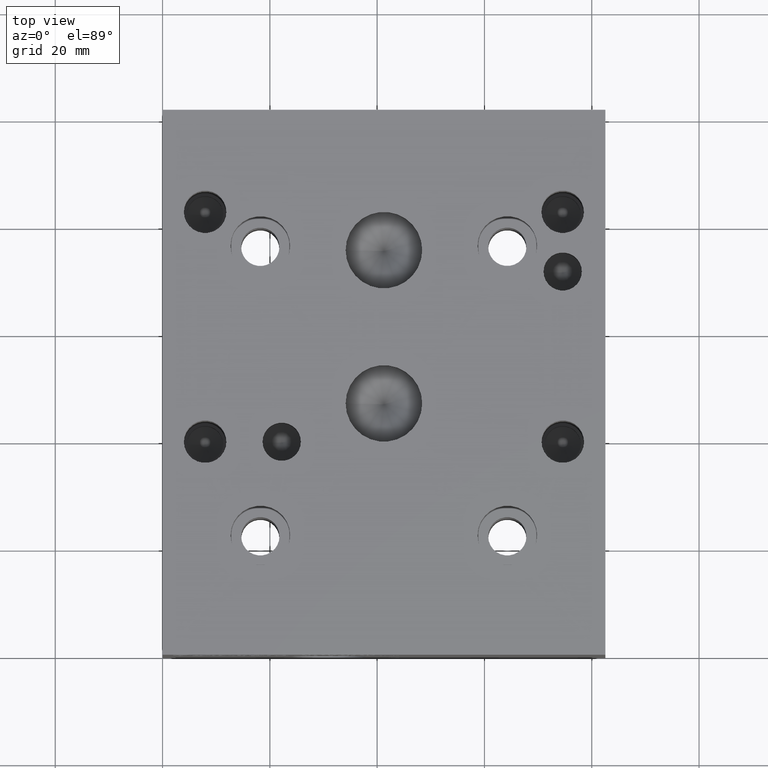
[diagram: clean part render]
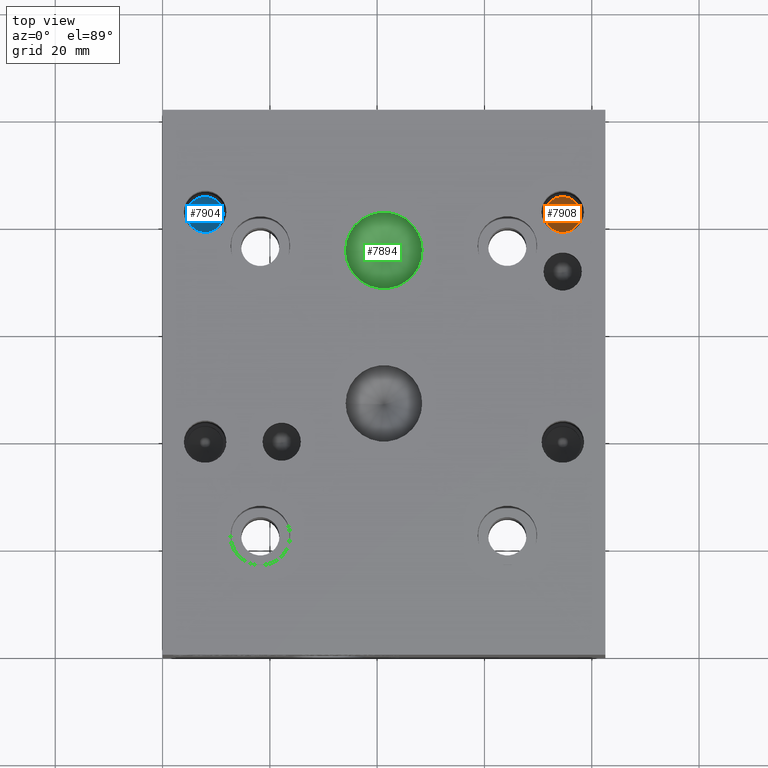
[diagram: same view with three faces highlighted in distinct colors, each labeled with its STEP entity id]
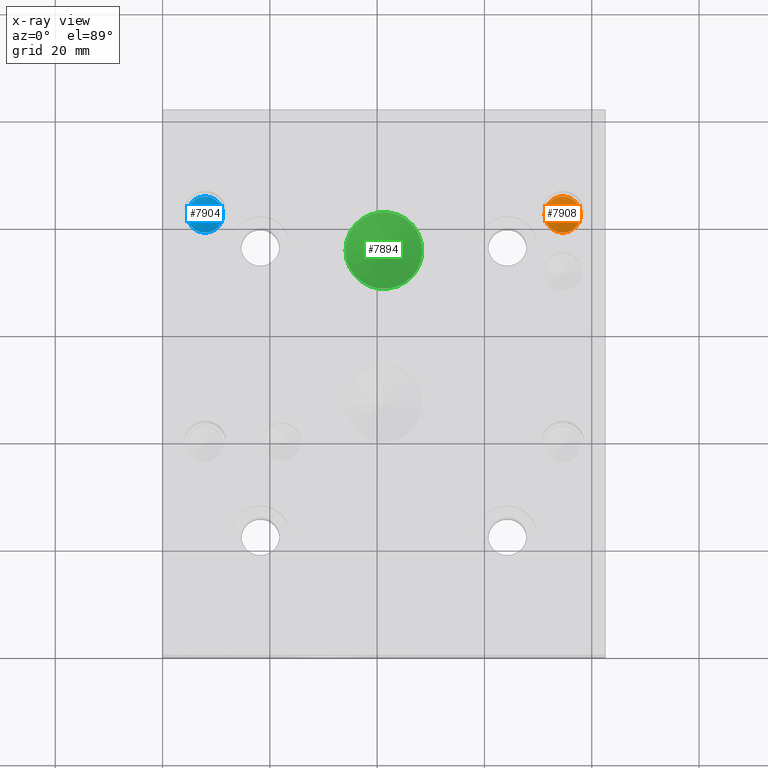
[diagram: x-ray of the same camera — body ghosted, the three highlighted faces saturated]
A machine part, top view with three faces highlighted in distinct colors.
The next image is the same camera in x-ray (body ghosted, the three faces saturated) — at least one of them is partly hidden behind the body in this view.
Their STEP definitions:

[orange] entity #7908 — the highlighted conical surface has half-angle 60 deg.
#23=CONICAL_SURFACE('',#8336,1.68275,1.0471975511966);
#776=CIRCLE('',#8337,3.3655);
#777=CIRCLE('',#8338,3.3655);
#1211=FACE_OUTER_BOUND('',#1665,.T.);
#1665=EDGE_LOOP('',(#7171,#7172,#7173,#7174));
#2472=LINE('',#13312,#3263);
#3263=VECTOR('',#9951,1.68275);
#3995=VERTEX_POINT('',#13308);
#3996=VERTEX_POINT('',#13309);
#3997=VERTEX_POINT('',#13311);
#5067=EDGE_CURVE('',#3995,#3996,#776,.T.);
#5068=EDGE_CURVE('',#3996,#3997,#2472,.T.);
#5069=EDGE_CURVE('',#3996,#3995,#777,.T.);
#7171=ORIENTED_EDGE('',*,*,#5067,.T.);
#7172=ORIENTED_EDGE('',*,*,#5068,.T.);
#7173=ORIENTED_EDGE('',*,*,#5068,.F.);
#7174=ORIENTED_EDGE('',*,*,#5069,.T.);
#7908=ADVANCED_FACE('',(#1211),#23,.F.);
#8336=AXIS2_PLACEMENT_3D('',#13307,#9947,#9948);
#8337=AXIS2_PLACEMENT_3D('',#13310,#9949,#9950);
#8338=AXIS2_PLACEMENT_3D('',#13313,#9952,#9953);
#9947=DIRECTION('center_axis',(0.,0.,1.));
#9948=DIRECTION('ref_axis',(1.,0.,0.));
#9949=DIRECTION('center_axis',(0.,0.,1.));
#9950=DIRECTION('ref_axis',(1.,0.,0.));
#9951=DIRECTION('',(0.866025403784438,1.06057523872491E-16,-0.5));
#9952=DIRECTION('center_axis',(0.,0.,1.));
#9953=DIRECTION('ref_axis',(1.,0.,0.));
#13307=CARTESIAN_POINT('Origin',(74.5744,82.55,7.76606383452116));
#13308=CARTESIAN_POINT('',(77.9399,82.55,8.7376));
#13309=CARTESIAN_POINT('',(71.2089,82.55,8.73760000000001));
#13310=CARTESIAN_POINT('Origin',(74.5744,82.55,8.7376));
#13311=CARTESIAN_POINT('',(74.5744,82.55,6.79452766904232));
#13312=CARTESIAN_POINT('',(72.89165,82.55,7.76606383452116));
#13313=CARTESIAN_POINT('Origin',(74.5744,82.55,8.7376));

[blue] entity #7904 — the highlighted conical surface has half-angle 60 deg.
#22=CONICAL_SURFACE('',#8325,1.68275,1.0471975511966);
#769=CIRCLE('',#8326,3.3655);
#770=CIRCLE('',#8327,3.3655);
#1207=FACE_OUTER_BOUND('',#1660,.T.);
#1660=EDGE_LOOP('',(#7153,#7154,#7155,#7156));
#2469=LINE('',#13290,#3260);
#3260=VECTOR('',#9926,1.68275);
#3987=VERTEX_POINT('',#13286);
#3988=VERTEX_POINT('',#13287);
#3989=VERTEX_POINT('',#13289);
#5057=EDGE_CURVE('',#3987,#3988,#769,.T.);
#5058=EDGE_CURVE('',#3988,#3989,#2469,.T.);
#5059=EDGE_CURVE('',#3988,#3987,#770,.T.);
#7153=ORIENTED_EDGE('',*,*,#5057,.T.);
#7154=ORIENTED_EDGE('',*,*,#5058,.T.);
#7155=ORIENTED_EDGE('',*,*,#5058,.F.);
#7156=ORIENTED_EDGE('',*,*,#5059,.T.);
#7904=ADVANCED_FACE('',(#1207),#22,.F.);
#8325=AXIS2_PLACEMENT_3D('',#13285,#9922,#9923);
#8326=AXIS2_PLACEMENT_3D('',#13288,#9924,#9925);
#8327=AXIS2_PLACEMENT_3D('',#13291,#9927,#9928);
#9922=DIRECTION('center_axis',(0.,0.,1.));
#9923=DIRECTION('ref_axis',(1.,0.,0.));
#9924=DIRECTION('center_axis',(0.,0.,1.));
#9925=DIRECTION('ref_axis',(1.,0.,0.));
#9926=DIRECTION('',(0.866025403784438,1.06057523872491E-16,-0.5));
#9927=DIRECTION('center_axis',(0.,0.,1.));
#9928=DIRECTION('ref_axis',(1.,0.,0.));
#13285=CARTESIAN_POINT('Origin',(7.9248,82.55,7.76606383452116));
#13286=CARTESIAN_POINT('',(11.2903,82.55,8.7376));
#13287=CARTESIAN_POINT('',(4.55929999999999,82.55,8.73760000000001));
#13288=CARTESIAN_POINT('Origin',(7.9248,82.55,8.7376));
#13289=CARTESIAN_POINT('',(7.9248,82.55,6.79452766904232));
#13290=CARTESIAN_POINT('',(6.24205,82.55,7.76606383452116));
#13291=CARTESIAN_POINT('Origin',(7.9248,82.55,8.7376));

[green] entity #7894 — the highlighted conical surface has half-angle 60 deg.
#18=CONICAL_SURFACE('',#8296,3.5687,1.0471975511966);
#750=CIRCLE('',#8297,7.1374);
#751=CIRCLE('',#8298,7.1374);
#1197=FACE_OUTER_BOUND('',#1649,.T.);
#1649=EDGE_LOOP('',(#7105,#7106,#7107,#7108));
#2460=LINE('',#13229,#3251);
#3251=VECTOR('',#9859,3.5687);
#3964=VERTEX_POINT('',#13225);
#3965=VERTEX_POINT('',#13226);
#3966=VERTEX_POINT('',#13228);
#5029=EDGE_CURVE('',#3964,#3965,#750,.T.);
#5030=EDGE_CURVE('',#3965,#3966,#2460,.T.);
#5031=EDGE_CURVE('',#3965,#3964,#751,.T.);
#7105=ORIENTED_EDGE('',*,*,#5029,.T.);
#7106=ORIENTED_EDGE('',*,*,#5030,.T.);
#7107=ORIENTED_EDGE('',*,*,#5030,.F.);
#7108=ORIENTED_EDGE('',*,*,#5031,.T.);
#7894=ADVANCED_FACE('',(#1197),#18,.F.);
#8296=AXIS2_PLACEMENT_3D('',#13224,#9855,#9856);
#8297=AXIS2_PLACEMENT_3D('',#13227,#9857,#9858);
#8298=AXIS2_PLACEMENT_3D('',#13230,#9860,#9861);
#9855=DIRECTION('center_axis',(0.,0.,1.));
#9856=DIRECTION('ref_axis',(1.,0.,0.));
#9857=DIRECTION('center_axis',(0.,0.,1.));
#9858=DIRECTION('ref_axis',(1.,0.,0.));
#9859=DIRECTION('',(0.866025403784439,1.06057523872491E-16,-0.5));
#9860=DIRECTION('center_axis',(0.,0.,1.));
#9861=DIRECTION('ref_axis',(1.,0.,0.));
#13224=CARTESIAN_POINT('Origin',(41.2496,75.4126,31.918830094343));
#13225=CARTESIAN_POINT('',(48.387,75.4126,33.97922));
#13226=CARTESIAN_POINT('',(34.1122,75.4126,33.97922));
#13227=CARTESIAN_POINT('Origin',(41.2496,75.4126,33.97922));
#13228=CARTESIAN_POINT('',(41.2496,75.4126,29.858440188686));
#13229=CARTESIAN_POINT('',(37.6809,75.4126,31.918830094343));
#13230=CARTESIAN_POINT('Origin',(41.2496,75.4126,33.97922));